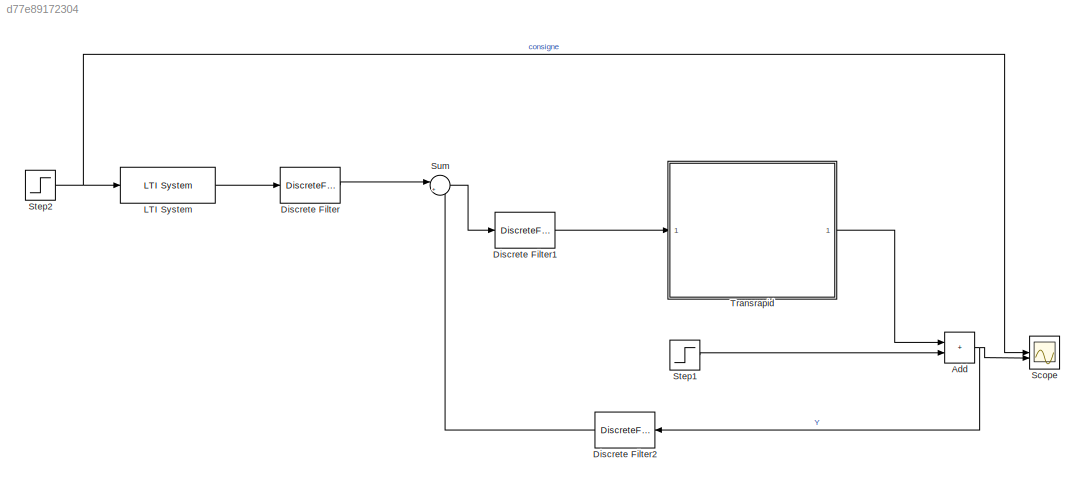
MODEL slx_d77e89172304
KIND model
CONFIG AbsTol = auto
CONFIG EnableMultiTasking = off
CONFIG FixedStep = auto
CONFIG MaxStep = auto
CONFIG MinStep = auto
CONFIG RelTol = 1e-3
CONFIG SampleTimeConstraint = Unconstrained
CONFIG SolverName = VariableStepAuto
CONFIG StartTime = 0.0
CONFIG StopTime = 3
BLOCK [Sum] Add
  IconShape = rectangular
BLOCK [DiscreteFilter] Discrete Filter
  Denominator = 1
  InputPortMap = u0
  Numerator = T
  SampleTime = Te
BLOCK [DiscreteFilter] Discrete Filter1
  Denominator = S
  InputPortMap = u0
  Numerator = 1
  SampleTime = Te
BLOCK [DiscreteFilter] Discrete Filter2
  Denominator = 1
  InputPortMap = u0
  NameLocation = top
  Numerator = R
BLOCK [Reference] LTI System  REF=cstblocks/LTI System
  SourceBlock = cstblocks/LTI System
  SourceType = LTI Block
BLOCK [Scope] Scope
  Floating = off
  NumInputPorts = 2
  ScopeSpecificationString = Simulink.scopes.TimeScopeBlockCfg('CurrentConfiguration', extmgr.ConfigurationSet(extmgr.Configuration('Core','General UI',true,'FigureColor',[1 1 1]),extmgr.Configuration('Core','Source UI',true),extmgr.Configuration('Sources','WiredSimulink',true),extmgr.Configuration('Visuals','Time Domain',true,'SerializedDisplays',{struct('MinYLimReal','0.00049','MaxYLimReal','0.01067','YLabelReal','','MinYLi...<+1620ch>
BLOCK [Step] Step1
  After = 0.005
  SampleTime = 0
  Time = 2.5
BLOCK [Step] Step2
  After = 0.005
  SampleTime = 0
  Time = 2
BLOCK [Sum] Sum
  Inputs = |+-
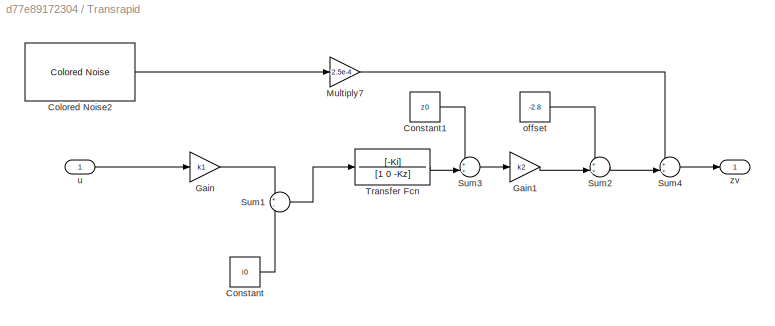
BLOCK [SubSystem] Transrapid
BLOCK [Reference] Transrapid/Colored Noise2  REF=dspsrcs4/Colored Noise
  SourceBlock = dspsrcs4/Colored Noise
  SourceType = dsp.simulink.ColoredNoise
BLOCK [Constant] Transrapid/Constant
  Value = i0
BLOCK [Constant] Transrapid/Constant1
  Value = z0
BLOCK [Gain] Transrapid/Gain
  Gain = k1
BLOCK [Gain] Transrapid/Gain1
  Gain = k2
BLOCK [Gain] Transrapid/Multiply7
  Gain = 2.5e-4
BLOCK [Sum] Transrapid/Sum1
  Inputs = +-
  NameLocation = top
BLOCK [Sum] Transrapid/Sum2
  Inputs = ++|
BLOCK [Sum] Transrapid/Sum3
  Inputs = ++|
BLOCK [Sum] Transrapid/Sum4
  Inputs = ++|
BLOCK [TransferFcn] Transrapid/Transfer Fcn
  Denominator = [1 0 -Kz]
  Numerator = [-Ki]
BLOCK [Constant] Transrapid/offset
  Value = -2.8
BLOCK [Inport] Transrapid/u
BLOCK [Outport] Transrapid/zv
NET Add:1 -> Discrete Filter2:1, Scope:2
LINE Discrete Filter1:1 -> Transrapid:1
LINE Discrete Filter2:1 -> Sum:2
LINE Discrete Filter:1 -> Sum:1
LINE LTI System:1 -> Discrete Filter:1
LINE Step1:1 -> Add:2
NET Step2:1 -> LTI System:1, Scope:1
LINE Sum:1 -> Discrete Filter1:1
LINE Transrapid/Colored Noise2:1 -> Transrapid/Multiply7:1
LINE Transrapid/Constant1:1 -> Transrapid/Sum3:1
LINE Transrapid/Constant:1 -> Transrapid/Sum1:2
LINE Transrapid/Gain1:1 -> Transrapid/Sum2:2
LINE Transrapid/Gain:1 -> Transrapid/Sum1:1
LINE Transrapid/Multiply7:1 -> Transrapid/Sum4:1
LINE Transrapid/Sum1:1 -> Transrapid/Transfer Fcn:1
LINE Transrapid/Sum2:1 -> Transrapid/Sum4:2
LINE Transrapid/Sum3:1 -> Transrapid/Gain1:1
LINE Transrapid/Sum4:1 -> Transrapid/zv:1
LINE Transrapid/Transfer Fcn:1 -> Transrapid/Sum3:2
LINE Transrapid/offset:1 -> Transrapid/Sum2:1
LINE Transrapid/u:1 -> Transrapid/Gain:1
LINE Transrapid:1 -> Add:1
note: NET lines group one-source signal fan-out (src -> all destinations, sorted); 1:1 wires keep LINE
